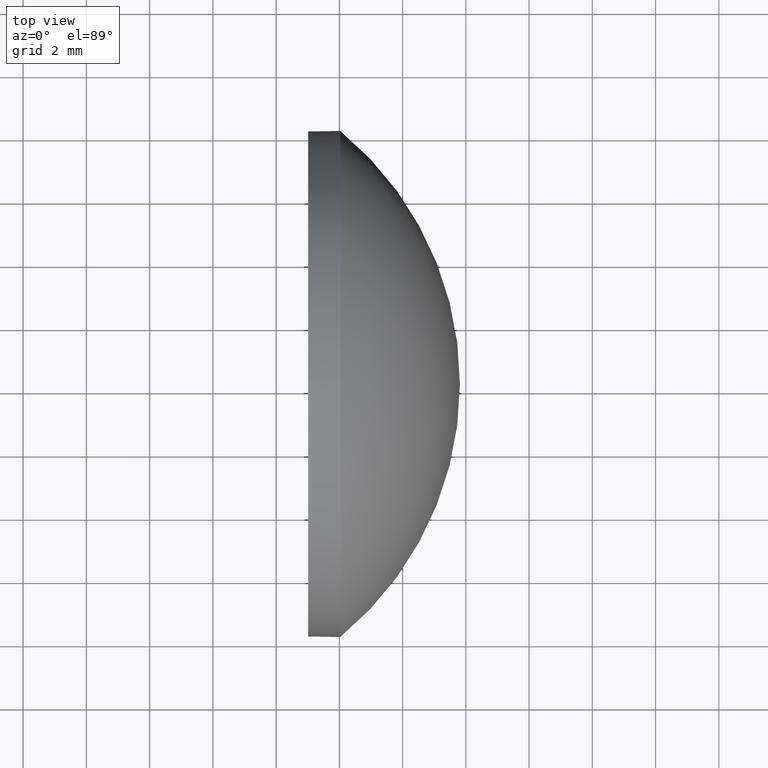
[diagram: clean part render]
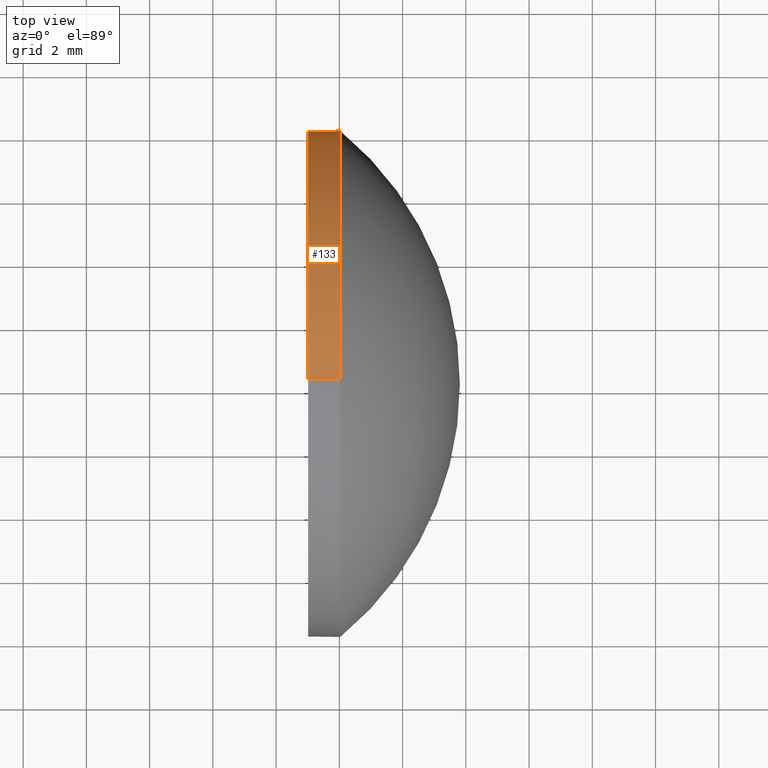
[diagram: same view with one face highlighted and labeled with its STEP entity id]
A machine part, top view. The second image highlights one B-rep face of the part: STEP entity #133.
In plain terms, the highlighted cylindrical surface (partial cylindrical patch) has radius 8 mm, axis along (-1, -0, -0).
Its self-contained STEP definition (entity closure, byte-faithful):
#2 = EDGE_CURVE ( 'NONE', #106, #20, #107, .T. ) ;
#3 = DIRECTION ( 'NONE',  ( -1.000000000000000000, -0.0000000000000000000, -0.0000000000000000000 ) ) ;
#4 = CARTESIAN_POINT ( 'NONE',  ( 378.0321735062485100, 0.1662147536938291500, 9.797174393178831600E-016 ) ) ;
#9 = CARTESIAN_POINT ( 'NONE',  ( 378.0321735062485100, -7.833785246306179700, 0.0000000000000000000 ) ) ;
#12 = FACE_OUTER_BOUND ( 'NONE', #167, .T. ) ;
#15 = ORIENTED_EDGE ( 'NONE', *, *, #2, .T. ) ;
#17 = CIRCLE ( 'NONE', #29, 8.000000000000001800 ) ;
#20 = VERTEX_POINT ( 'NONE', #119 ) ;
#23 = DIRECTION ( 'NONE',  ( -1.000000000000000000, -0.0000000000000000000, -0.0000000000000000000 ) ) ;
#29 = AXIS2_PLACEMENT_3D ( 'NONE', #9, #68, #122 ) ;
#31 = EDGE_CURVE ( 'NONE', #138, #106, #60, .T. ) ;
#37 = CARTESIAN_POINT ( 'NONE',  ( 377.0121735062485300, -7.833785246306179700, 8.000000000000001800 ) ) ;
#41 = EDGE_CURVE ( 'NONE', #183, #138, #17, .T. ) ;
#46 = AXIS2_PLACEMENT_3D ( 'NONE', #147, #48, #77 ) ;
#48 = DIRECTION ( 'NONE',  ( -1.000000000000000000, -0.0000000000000000000, -0.0000000000000000000 ) ) ;
#49 = EDGE_CURVE ( 'NONE', #142, #20, #136, .T. ) ;
#54 = DIRECTION ( 'NONE',  ( -1.000000000000000000, -0.0000000000000000000, -0.0000000000000000000 ) ) ;
#56 = VECTOR ( 'NONE', #3, 1000.000000000000000 ) ;
#60 = CIRCLE ( 'NONE', #139, 8.000000000000001800 ) ;
#64 = CARTESIAN_POINT ( 'NONE',  ( 378.0321735062485100, -7.833785246306179700, 8.000000000000001800 ) ) ;
#67 = ORIENTED_EDGE ( 'NONE', *, *, #31, .T. ) ;
#68 = DIRECTION ( 'NONE',  ( -1.000000000000000000, -0.0000000000000000000, -0.0000000000000000000 ) ) ;
#69 = VECTOR ( 'NONE', #23, 1000.000000000000000 ) ;
#75 = CARTESIAN_POINT ( 'NONE',  ( 378.0321735062485100, -7.833785246306177900, -8.000000000000001800 ) ) ;
#77 = DIRECTION ( 'NONE',  ( 0.0000000000000000000, 0.0000000000000000000, 1.000000000000000000 ) ) ;
#79 = CARTESIAN_POINT ( 'NONE',  ( 375.3642010332570200, -7.833785246306177900, -8.000000000000001800 ) ) ;
#83 = EDGE_CURVE ( 'NONE', #183, #142, #153, .T. ) ;
#102 = ORIENTED_EDGE ( 'NONE', *, *, #41, .T. ) ;
#105 = DIRECTION ( 'NONE',  ( 0.0000000000000000000, 0.0000000000000000000, 1.000000000000000000 ) ) ;
#106 = VERTEX_POINT ( 'NONE', #75 ) ;
#107 = LINE ( 'NONE', #79, #69 ) ;
#108 = CARTESIAN_POINT ( 'NONE',  ( 375.3642010332570200, -7.833785246306179700, 0.0000000000000000000 ) ) ;
#119 = CARTESIAN_POINT ( 'NONE',  ( 377.0121735062485300, -7.833785246306177900, -8.000000000000001800 ) ) ;
#122 = DIRECTION ( 'NONE',  ( 0.0000000000000000000, 0.0000000000000000000, 1.000000000000000000 ) ) ;
#132 = ORIENTED_EDGE ( 'NONE', *, *, #49, .F. ) ;
#133 = ADVANCED_FACE ( 'NONE', ( #12 ), #159, .T. ) ;
#136 = CIRCLE ( 'NONE', #46, 8.000000000000001800 ) ;
#138 = VERTEX_POINT ( 'NONE', #4 ) ;
#139 = AXIS2_PLACEMENT_3D ( 'NONE', #148, #54, #149 ) ;
#142 = VERTEX_POINT ( 'NONE', #37 ) ;
#143 = AXIS2_PLACEMENT_3D ( 'NONE', #108, #146, #105 ) ;
#146 = DIRECTION ( 'NONE',  ( -1.000000000000000000, -0.0000000000000000000, -0.0000000000000000000 ) ) ;
#147 = CARTESIAN_POINT ( 'NONE',  ( 377.0121735062485300, -7.833785246306179700, 0.0000000000000000000 ) ) ;
#148 = CARTESIAN_POINT ( 'NONE',  ( 378.0321735062485100, -7.833785246306179700, 0.0000000000000000000 ) ) ;
#149 = DIRECTION ( 'NONE',  ( 0.0000000000000000000, 0.0000000000000000000, 1.000000000000000000 ) ) ;
#153 = LINE ( 'NONE', #176, #56 ) ;
#159 = CYLINDRICAL_SURFACE ( 'NONE', #143, 8.000000000000001800 ) ;
#167 = EDGE_LOOP ( 'NONE', ( #67, #15, #132, #175, #102 ) ) ;
#175 = ORIENTED_EDGE ( 'NONE', *, *, #83, .F. ) ;
#176 = CARTESIAN_POINT ( 'NONE',  ( 375.3642010332570200, -7.833785246306179700, 8.000000000000001800 ) ) ;
#183 = VERTEX_POINT ( 'NONE', #64 ) ;